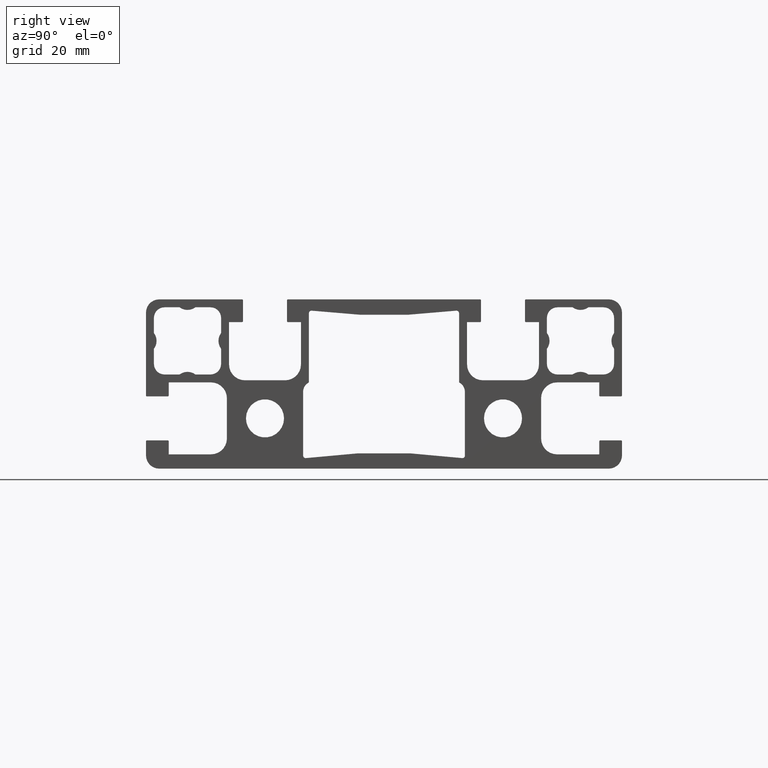
[diagram: clean part render]
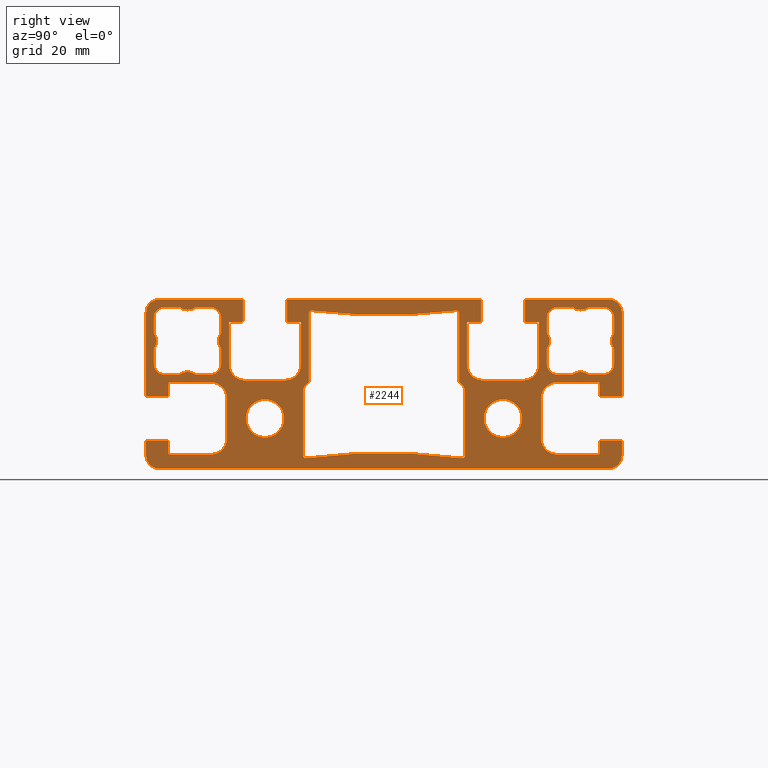
[diagram: same view with one face highlighted and labeled with its STEP entity id]
A machine part, right view. The second image highlights one B-rep face of the part: STEP entity #2244.
In plain terms, the highlighted planar face has unit normal (1, 0, 0).
Its self-contained STEP definition (entity closure, byte-faithful):
#20=FACE_BOUND('',#312,.T.);
#21=FACE_BOUND('',#313,.T.);
#22=FACE_BOUND('',#314,.T.);
#23=FACE_BOUND('',#315,.T.);
#24=FACE_BOUND('',#316,.T.);
#82=PLANE('',#2484);
#194=FACE_OUTER_BOUND('',#311,.T.);
#311=EDGE_LOOP('',(#1969,#1970,#1971,#1972,#1973,#1974,#1975,#1976,#1977,
#1978,#1979,#1980,#1981,#1982,#1983,#1984,#1985,#1986,#1987,#1988,#1989,
#1990,#1991,#1992,#1993,#1994,#1995,#1996,#1997,#1998,#1999,#2000,#2001,
#2002,#2003,#2004,#2005,#2006,#2007,#2008,#2009,#2010,#2011,#2012,#2013,
#2014,#2015,#2016,#2017,#2018,#2019,#2020,#2021,#2022,#2023,#2024,#2025,
#2026,#2027,#2028,#2029,#2030,#2031,#2032));
#312=EDGE_LOOP('',(#2033,#2034,#2035,#2036,#2037,#2038,#2039,#2040,#2041,
#2042,#2043,#2044));
#313=EDGE_LOOP('',(#2045,#2046,#2047,#2048,#2049,#2050,#2051,#2052,#2053,
#2054,#2055,#2056,#2057,#2058,#2059,#2060));
#314=EDGE_LOOP('',(#2061,#2062,#2063,#2064,#2065,#2066,#2067,#2068,#2069,
#2070,#2071,#2072,#2073,#2074,#2075,#2076));
#315=EDGE_LOOP('',(#2077));
#316=EDGE_LOOP('',(#2078));
#318=CIRCLE('',#2267,0.500000000000047);
#320=CIRCLE('',#2270,108.3);
#322=CIRCLE('',#2273,0.500000000000009);
#324=CIRCLE('',#2277,2.);
#326=CIRCLE('',#2281,0.499999999999996);
#328=CIRCLE('',#2284,108.3);
#330=CIRCLE('',#2287,0.499999999999994);
#332=CIRCLE('',#2291,2.);
#334=CIRCLE('',#2295,2.);
#336=CIRCLE('',#2299,2.5);
#338=CIRCLE('',#2303,2.00000000000001);
#340=CIRCLE('',#2307,2.5);
#342=CIRCLE('',#2311,2.00000000000001);
#344=CIRCLE('',#2315,2.5);
#346=CIRCLE('',#2319,2.);
#348=CIRCLE('',#2323,2.5);
#350=CIRCLE('',#2327,2.00000000000001);
#352=CIRCLE('',#2331,2.5);
#354=CIRCLE('',#2335,2.);
#356=CIRCLE('',#2339,2.5);
#358=CIRCLE('',#2343,2.00000000000001);
#360=CIRCLE('',#2347,2.5);
#362=CIRCLE('',#2351,2.00000000000001);
#364=CIRCLE('',#2355,2.5);
#366=CIRCLE('',#2359,3.6);
#368=CIRCLE('',#2362,3.6);
#397=CIRCLE('',#2393,0.199999999999996);
#398=CIRCLE('',#2396,0.199999999999996);
#399=CIRCLE('',#2399,2.5);
#400=CIRCLE('',#2402,0.199999999999996);
#401=CIRCLE('',#2405,0.2);
#402=CIRCLE('',#2409,3.);
#403=CIRCLE('',#2412,3.);
#404=CIRCLE('',#2416,0.199999999999998);
#405=CIRCLE('',#2419,0.200000000000016);
#406=CIRCLE('',#2422,0.199999999999998);
#407=CIRCLE('',#2425,0.199999999999998);
#408=CIRCLE('',#2429,3.);
#409=CIRCLE('',#2432,3.);
#410=CIRCLE('',#2436,0.2);
#411=CIRCLE('',#2439,0.199999999999991);
#412=CIRCLE('',#2442,2.5);
#413=CIRCLE('',#2445,0.199999999999996);
#414=CIRCLE('',#2448,0.199999999999996);
#415=CIRCLE('',#2452,3.00000000000001);
#416=CIRCLE('',#2455,2.99999999999999);
#417=CIRCLE('',#2459,0.199999999999996);
#418=CIRCLE('',#2462,0.199999999999996);
#419=CIRCLE('',#2465,2.5);
#420=CIRCLE('',#2468,2.5);
#421=CIRCLE('',#2471,0.2);
#422=CIRCLE('',#2474,0.199999999999996);
#423=CIRCLE('',#2478,3.);
#424=CIRCLE('',#2481,3.);
#431=LINE('',#3176,#653);
#435=LINE('',#3188,#657);
#441=LINE('',#3212,#663);
#444=LINE('',#3221,#666);
#449=LINE('',#3236,#671);
#453=LINE('',#3248,#675);
#457=LINE('',#3260,#679);
#461=LINE('',#3272,#683);
#465=LINE('',#3284,#687);
#469=LINE('',#3296,#691);
#473=LINE('',#3308,#695);
#476=LINE('',#3317,#698);
#481=LINE('',#3332,#703);
#485=LINE('',#3344,#707);
#489=LINE('',#3356,#711);
#493=LINE('',#3368,#715);
#497=LINE('',#3380,#719);
#501=LINE('',#3392,#723);
#505=LINE('',#3404,#727);
#508=LINE('',#3413,#730);
#549=LINE('',#3563,#771);
#552=LINE('',#3571,#774);
#555=LINE('',#3579,#777);
#558=LINE('',#3587,#780);
#561=LINE('',#3595,#783);
#563=LINE('',#3599,#785);
#566=LINE('',#3607,#788);
#569=LINE('',#3615,#791);
#571=LINE('',#3619,#793);
#574=LINE('',#3627,#796);
#577=LINE('',#3635,#799);
#580=LINE('',#3643,#802);
#583=LINE('',#3651,#805);
#585=LINE('',#3655,#807);
#588=LINE('',#3663,#810);
#591=LINE('',#3671,#813);
#593=LINE('',#3675,#815);
#596=LINE('',#3683,#818);
#599=LINE('',#3691,#821);
#602=LINE('',#3699,#824);
#605=LINE('',#3707,#827);
#608=LINE('',#3715,#830);
#610=LINE('',#3719,#832);
#613=LINE('',#3727,#835);
#616=LINE('',#3735,#838);
#618=LINE('',#3739,#840);
#621=LINE('',#3747,#843);
#624=LINE('',#3755,#846);
#627=LINE('',#3763,#849);
#630=LINE('',#3771,#852);
#633=LINE('',#3779,#855);
#636=LINE('',#3787,#858);
#638=LINE('',#3791,#860);
#641=LINE('',#3799,#863);
#644=LINE('',#3807,#866);
#646=LINE('',#3810,#868);
#653=VECTOR('',#2513,10.);
#657=VECTOR('',#2525,10.);
#663=VECTOR('',#2551,10.);
#666=VECTOR('',#2562,10.);
#671=VECTOR('',#2575,10.);
#675=VECTOR('',#2587,10.);
#679=VECTOR('',#2599,10.);
#683=VECTOR('',#2611,10.);
#687=VECTOR('',#2623,10.);
#691=VECTOR('',#2635,10.);
#695=VECTOR('',#2647,10.);
#698=VECTOR('',#2658,10.);
#703=VECTOR('',#2671,10.);
#707=VECTOR('',#2683,10.);
#711=VECTOR('',#2695,10.);
#715=VECTOR('',#2707,10.);
#719=VECTOR('',#2719,10.);
#723=VECTOR('',#2731,10.);
#727=VECTOR('',#2743,10.);
#730=VECTOR('',#2754,10.);
#771=VECTOR('',#2871,10.);
#774=VECTOR('',#2880,10.);
#777=VECTOR('',#2889,10.);
#780=VECTOR('',#2898,10.);
#783=VECTOR('',#2907,10.);
#785=VECTOR('',#2911,10.);
#788=VECTOR('',#2920,10.);
#791=VECTOR('',#2929,10.);
#793=VECTOR('',#2933,10.);
#796=VECTOR('',#2942,10.);
#799=VECTOR('',#2951,10.);
#802=VECTOR('',#2960,10.);
#805=VECTOR('',#2969,10.);
#807=VECTOR('',#2973,10.);
#810=VECTOR('',#2982,10.);
#813=VECTOR('',#2991,10.);
#815=VECTOR('',#2995,10.);
#818=VECTOR('',#3004,10.);
#821=VECTOR('',#3013,10.);
#824=VECTOR('',#3022,10.);
#827=VECTOR('',#3031,10.);
#830=VECTOR('',#3040,10.);
#832=VECTOR('',#3044,10.);
#835=VECTOR('',#3053,10.);
#838=VECTOR('',#3062,10.);
#840=VECTOR('',#3066,10.);
#843=VECTOR('',#3075,10.);
#846=VECTOR('',#3084,10.);
#849=VECTOR('',#3093,10.);
#852=VECTOR('',#3102,10.);
#855=VECTOR('',#3111,10.);
#858=VECTOR('',#3120,10.);
#860=VECTOR('',#3124,10.);
#863=VECTOR('',#3133,10.);
#866=VECTOR('',#3142,10.);
#868=VECTOR('',#3146,10.);
#869=VERTEX_POINT('',#3151);
#872=VERTEX_POINT('',#3156);
#874=VERTEX_POINT('',#3162);
#876=VERTEX_POINT('',#3168);
#878=VERTEX_POINT('',#3174);
#880=VERTEX_POINT('',#3180);
#882=VERTEX_POINT('',#3186);
#884=VERTEX_POINT('',#3192);
#886=VERTEX_POINT('',#3198);
#888=VERTEX_POINT('',#3204);
#890=VERTEX_POINT('',#3210);
#892=VERTEX_POINT('',#3216);
#893=VERTEX_POINT('',#3223);
#896=VERTEX_POINT('',#3228);
#898=VERTEX_POINT('',#3234);
#900=VERTEX_POINT('',#3240);
#902=VERTEX_POINT('',#3246);
#904=VERTEX_POINT('',#3252);
#906=VERTEX_POINT('',#3258);
#908=VERTEX_POINT('',#3264);
#910=VERTEX_POINT('',#3270);
#912=VERTEX_POINT('',#3276);
#914=VERTEX_POINT('',#3282);
#916=VERTEX_POINT('',#3288);
#918=VERTEX_POINT('',#3294);
#920=VERTEX_POINT('',#3300);
#922=VERTEX_POINT('',#3306);
#924=VERTEX_POINT('',#3312);
#925=VERTEX_POINT('',#3319);
#928=VERTEX_POINT('',#3324);
#930=VERTEX_POINT('',#3330);
#932=VERTEX_POINT('',#3336);
#934=VERTEX_POINT('',#3342);
#936=VERTEX_POINT('',#3348);
#938=VERTEX_POINT('',#3354);
#940=VERTEX_POINT('',#3360);
#942=VERTEX_POINT('',#3366);
#944=VERTEX_POINT('',#3372);
#946=VERTEX_POINT('',#3378);
#948=VERTEX_POINT('',#3384);
#950=VERTEX_POINT('',#3390);
#952=VERTEX_POINT('',#3396);
#954=VERTEX_POINT('',#3402);
#956=VERTEX_POINT('',#3408);
#958=VERTEX_POINT('',#3417);
#960=VERTEX_POINT('',#3423);
#1025=VERTEX_POINT('',#3556);
#1026=VERTEX_POINT('',#3558);
#1027=VERTEX_POINT('',#3562);
#1028=VERTEX_POINT('',#3566);
#1029=VERTEX_POINT('',#3570);
#1030=VERTEX_POINT('',#3574);
#1031=VERTEX_POINT('',#3578);
#1032=VERTEX_POINT('',#3582);
#1033=VERTEX_POINT('',#3586);
#1034=VERTEX_POINT('',#3590);
#1035=VERTEX_POINT('',#3594);
#1036=VERTEX_POINT('',#3598);
#1037=VERTEX_POINT('',#3602);
#1038=VERTEX_POINT('',#3606);
#1039=VERTEX_POINT('',#3610);
#1040=VERTEX_POINT('',#3614);
#1041=VERTEX_POINT('',#3618);
#1042=VERTEX_POINT('',#3622);
#1043=VERTEX_POINT('',#3626);
#1044=VERTEX_POINT('',#3630);
#1045=VERTEX_POINT('',#3634);
#1046=VERTEX_POINT('',#3638);
#1047=VERTEX_POINT('',#3642);
#1048=VERTEX_POINT('',#3646);
#1049=VERTEX_POINT('',#3650);
#1050=VERTEX_POINT('',#3654);
#1051=VERTEX_POINT('',#3658);
#1052=VERTEX_POINT('',#3662);
#1053=VERTEX_POINT('',#3666);
#1054=VERTEX_POINT('',#3670);
#1055=VERTEX_POINT('',#3674);
#1056=VERTEX_POINT('',#3678);
#1057=VERTEX_POINT('',#3682);
#1058=VERTEX_POINT('',#3686);
#1059=VERTEX_POINT('',#3690);
#1060=VERTEX_POINT('',#3694);
#1061=VERTEX_POINT('',#3698);
#1062=VERTEX_POINT('',#3702);
#1063=VERTEX_POINT('',#3706);
#1064=VERTEX_POINT('',#3710);
#1065=VERTEX_POINT('',#3714);
#1066=VERTEX_POINT('',#3718);
#1067=VERTEX_POINT('',#3722);
#1068=VERTEX_POINT('',#3726);
#1069=VERTEX_POINT('',#3730);
#1070=VERTEX_POINT('',#3734);
#1071=VERTEX_POINT('',#3738);
#1072=VERTEX_POINT('',#3742);
#1073=VERTEX_POINT('',#3746);
#1074=VERTEX_POINT('',#3750);
#1075=VERTEX_POINT('',#3754);
#1076=VERTEX_POINT('',#3758);
#1077=VERTEX_POINT('',#3762);
#1078=VERTEX_POINT('',#3766);
#1079=VERTEX_POINT('',#3770);
#1080=VERTEX_POINT('',#3774);
#1081=VERTEX_POINT('',#3778);
#1082=VERTEX_POINT('',#3782);
#1083=VERTEX_POINT('',#3786);
#1084=VERTEX_POINT('',#3790);
#1085=VERTEX_POINT('',#3794);
#1086=VERTEX_POINT('',#3798);
#1087=VERTEX_POINT('',#3802);
#1088=VERTEX_POINT('',#3806);
#1092=EDGE_CURVE('',#869,#872,#318,.T.);
#1095=EDGE_CURVE('',#872,#874,#320,.T.);
#1098=EDGE_CURVE('',#874,#876,#322,.T.);
#1101=EDGE_CURVE('',#876,#878,#431,.T.);
#1104=EDGE_CURVE('',#878,#880,#324,.T.);
#1107=EDGE_CURVE('',#880,#882,#435,.T.);
#1110=EDGE_CURVE('',#882,#884,#326,.T.);
#1113=EDGE_CURVE('',#884,#886,#328,.T.);
#1116=EDGE_CURVE('',#886,#888,#330,.T.);
#1119=EDGE_CURVE('',#888,#890,#441,.T.);
#1122=EDGE_CURVE('',#890,#892,#332,.T.);
#1124=EDGE_CURVE('',#892,#869,#444,.T.);
#1128=EDGE_CURVE('',#893,#896,#334,.T.);
#1131=EDGE_CURVE('',#896,#898,#449,.T.);
#1134=EDGE_CURVE('',#898,#900,#336,.T.);
#1137=EDGE_CURVE('',#900,#902,#453,.T.);
#1140=EDGE_CURVE('',#902,#904,#338,.T.);
#1143=EDGE_CURVE('',#904,#906,#457,.T.);
#1146=EDGE_CURVE('',#906,#908,#340,.T.);
#1149=EDGE_CURVE('',#908,#910,#461,.T.);
#1152=EDGE_CURVE('',#910,#912,#342,.T.);
#1155=EDGE_CURVE('',#912,#914,#465,.T.);
#1158=EDGE_CURVE('',#914,#916,#344,.T.);
#1161=EDGE_CURVE('',#916,#918,#469,.T.);
#1164=EDGE_CURVE('',#918,#920,#346,.T.);
#1167=EDGE_CURVE('',#920,#922,#473,.T.);
#1170=EDGE_CURVE('',#922,#924,#348,.T.);
#1172=EDGE_CURVE('',#924,#893,#476,.T.);
#1176=EDGE_CURVE('',#925,#928,#350,.T.);
#1179=EDGE_CURVE('',#928,#930,#481,.T.);
#1182=EDGE_CURVE('',#930,#932,#352,.T.);
#1185=EDGE_CURVE('',#932,#934,#485,.T.);
#1188=EDGE_CURVE('',#934,#936,#354,.T.);
#1191=EDGE_CURVE('',#936,#938,#489,.T.);
#1194=EDGE_CURVE('',#938,#940,#356,.T.);
#1197=EDGE_CURVE('',#940,#942,#493,.T.);
#1200=EDGE_CURVE('',#942,#944,#358,.T.);
#1203=EDGE_CURVE('',#944,#946,#497,.T.);
#1206=EDGE_CURVE('',#946,#948,#360,.T.);
#1209=EDGE_CURVE('',#948,#950,#501,.T.);
#1212=EDGE_CURVE('',#950,#952,#362,.T.);
#1215=EDGE_CURVE('',#952,#954,#505,.T.);
#1218=EDGE_CURVE('',#954,#956,#364,.T.);
#1220=EDGE_CURVE('',#956,#925,#508,.T.);
#1223=EDGE_CURVE('',#958,#958,#366,.T.);
#1226=EDGE_CURVE('',#960,#960,#368,.T.);
#1292=EDGE_CURVE('',#1026,#1025,#397,.T.);
#1294=EDGE_CURVE('',#1027,#1026,#549,.T.);
#1296=EDGE_CURVE('',#1028,#1027,#398,.T.);
#1298=EDGE_CURVE('',#1029,#1028,#552,.T.);
#1300=EDGE_CURVE('',#1030,#1029,#399,.T.);
#1302=EDGE_CURVE('',#1031,#1030,#555,.T.);
#1304=EDGE_CURVE('',#1032,#1031,#400,.T.);
#1306=EDGE_CURVE('',#1033,#1032,#558,.T.);
#1308=EDGE_CURVE('',#1034,#1033,#401,.T.);
#1310=EDGE_CURVE('',#1035,#1034,#561,.T.);
#1312=EDGE_CURVE('',#1036,#1035,#563,.T.);
#1314=EDGE_CURVE('',#1037,#1036,#402,.T.);
#1316=EDGE_CURVE('',#1038,#1037,#566,.T.);
#1318=EDGE_CURVE('',#1039,#1038,#403,.T.);
#1320=EDGE_CURVE('',#1040,#1039,#569,.T.);
#1322=EDGE_CURVE('',#1041,#1040,#571,.T.);
#1324=EDGE_CURVE('',#1042,#1041,#404,.T.);
#1326=EDGE_CURVE('',#1043,#1042,#574,.T.);
#1328=EDGE_CURVE('',#1044,#1043,#405,.T.);
#1330=EDGE_CURVE('',#1045,#1044,#577,.T.);
#1332=EDGE_CURVE('',#1046,#1045,#406,.T.);
#1334=EDGE_CURVE('',#1047,#1046,#580,.T.);
#1336=EDGE_CURVE('',#1048,#1047,#407,.T.);
#1338=EDGE_CURVE('',#1049,#1048,#583,.T.);
#1340=EDGE_CURVE('',#1050,#1049,#585,.T.);
#1342=EDGE_CURVE('',#1051,#1050,#408,.T.);
#1344=EDGE_CURVE('',#1052,#1051,#588,.T.);
#1346=EDGE_CURVE('',#1053,#1052,#409,.T.);
#1348=EDGE_CURVE('',#1054,#1053,#591,.T.);
#1350=EDGE_CURVE('',#1055,#1054,#593,.T.);
#1352=EDGE_CURVE('',#1056,#1055,#410,.T.);
#1354=EDGE_CURVE('',#1057,#1056,#596,.T.);
#1356=EDGE_CURVE('',#1058,#1057,#411,.T.);
#1358=EDGE_CURVE('',#1059,#1058,#599,.T.);
#1360=EDGE_CURVE('',#1060,#1059,#412,.T.);
#1362=EDGE_CURVE('',#1061,#1060,#602,.T.);
#1364=EDGE_CURVE('',#1062,#1061,#413,.T.);
#1366=EDGE_CURVE('',#1063,#1062,#605,.T.);
#1368=EDGE_CURVE('',#1064,#1063,#414,.T.);
#1370=EDGE_CURVE('',#1065,#1064,#608,.T.);
#1372=EDGE_CURVE('',#1066,#1065,#610,.T.);
#1374=EDGE_CURVE('',#1067,#1066,#415,.T.);
#1376=EDGE_CURVE('',#1068,#1067,#613,.T.);
#1378=EDGE_CURVE('',#1069,#1068,#416,.T.);
#1380=EDGE_CURVE('',#1070,#1069,#616,.T.);
#1382=EDGE_CURVE('',#1071,#1070,#618,.T.);
#1384=EDGE_CURVE('',#1072,#1071,#417,.T.);
#1386=EDGE_CURVE('',#1073,#1072,#621,.T.);
#1388=EDGE_CURVE('',#1074,#1073,#418,.T.);
#1390=EDGE_CURVE('',#1075,#1074,#624,.T.);
#1392=EDGE_CURVE('',#1076,#1075,#419,.T.);
#1394=EDGE_CURVE('',#1077,#1076,#627,.T.);
#1396=EDGE_CURVE('',#1078,#1077,#420,.T.);
#1398=EDGE_CURVE('',#1079,#1078,#630,.T.);
#1400=EDGE_CURVE('',#1080,#1079,#421,.T.);
#1402=EDGE_CURVE('',#1081,#1080,#633,.T.);
#1404=EDGE_CURVE('',#1082,#1081,#422,.T.);
#1406=EDGE_CURVE('',#1083,#1082,#636,.T.);
#1408=EDGE_CURVE('',#1084,#1083,#638,.T.);
#1410=EDGE_CURVE('',#1085,#1084,#423,.T.);
#1412=EDGE_CURVE('',#1086,#1085,#641,.T.);
#1414=EDGE_CURVE('',#1087,#1086,#424,.T.);
#1416=EDGE_CURVE('',#1088,#1087,#644,.T.);
#1418=EDGE_CURVE('',#1025,#1088,#646,.T.);
#1969=ORIENTED_EDGE('',*,*,#1418,.T.);
#1970=ORIENTED_EDGE('',*,*,#1416,.T.);
#1971=ORIENTED_EDGE('',*,*,#1414,.T.);
#1972=ORIENTED_EDGE('',*,*,#1412,.T.);
#1973=ORIENTED_EDGE('',*,*,#1410,.T.);
#1974=ORIENTED_EDGE('',*,*,#1408,.T.);
#1975=ORIENTED_EDGE('',*,*,#1406,.T.);
#1976=ORIENTED_EDGE('',*,*,#1404,.T.);
#1977=ORIENTED_EDGE('',*,*,#1402,.T.);
#1978=ORIENTED_EDGE('',*,*,#1400,.T.);
#1979=ORIENTED_EDGE('',*,*,#1398,.T.);
#1980=ORIENTED_EDGE('',*,*,#1396,.T.);
#1981=ORIENTED_EDGE('',*,*,#1394,.T.);
#1982=ORIENTED_EDGE('',*,*,#1392,.T.);
#1983=ORIENTED_EDGE('',*,*,#1390,.T.);
#1984=ORIENTED_EDGE('',*,*,#1388,.T.);
#1985=ORIENTED_EDGE('',*,*,#1386,.T.);
#1986=ORIENTED_EDGE('',*,*,#1384,.T.);
#1987=ORIENTED_EDGE('',*,*,#1382,.T.);
#1988=ORIENTED_EDGE('',*,*,#1380,.T.);
#1989=ORIENTED_EDGE('',*,*,#1378,.T.);
#1990=ORIENTED_EDGE('',*,*,#1376,.T.);
#1991=ORIENTED_EDGE('',*,*,#1374,.T.);
#1992=ORIENTED_EDGE('',*,*,#1372,.T.);
#1993=ORIENTED_EDGE('',*,*,#1370,.T.);
#1994=ORIENTED_EDGE('',*,*,#1368,.T.);
#1995=ORIENTED_EDGE('',*,*,#1366,.T.);
#1996=ORIENTED_EDGE('',*,*,#1364,.T.);
#1997=ORIENTED_EDGE('',*,*,#1362,.T.);
#1998=ORIENTED_EDGE('',*,*,#1360,.T.);
#1999=ORIENTED_EDGE('',*,*,#1358,.T.);
#2000=ORIENTED_EDGE('',*,*,#1356,.T.);
#2001=ORIENTED_EDGE('',*,*,#1354,.T.);
#2002=ORIENTED_EDGE('',*,*,#1352,.T.);
#2003=ORIENTED_EDGE('',*,*,#1350,.T.);
#2004=ORIENTED_EDGE('',*,*,#1348,.T.);
#2005=ORIENTED_EDGE('',*,*,#1346,.T.);
#2006=ORIENTED_EDGE('',*,*,#1344,.T.);
#2007=ORIENTED_EDGE('',*,*,#1342,.T.);
#2008=ORIENTED_EDGE('',*,*,#1340,.T.);
#2009=ORIENTED_EDGE('',*,*,#1338,.T.);
#2010=ORIENTED_EDGE('',*,*,#1336,.T.);
#2011=ORIENTED_EDGE('',*,*,#1334,.T.);
#2012=ORIENTED_EDGE('',*,*,#1332,.T.);
#2013=ORIENTED_EDGE('',*,*,#1330,.T.);
#2014=ORIENTED_EDGE('',*,*,#1328,.T.);
#2015=ORIENTED_EDGE('',*,*,#1326,.T.);
#2016=ORIENTED_EDGE('',*,*,#1324,.T.);
#2017=ORIENTED_EDGE('',*,*,#1322,.T.);
#2018=ORIENTED_EDGE('',*,*,#1320,.T.);
#2019=ORIENTED_EDGE('',*,*,#1318,.T.);
#2020=ORIENTED_EDGE('',*,*,#1316,.T.);
#2021=ORIENTED_EDGE('',*,*,#1314,.T.);
#2022=ORIENTED_EDGE('',*,*,#1312,.T.);
#2023=ORIENTED_EDGE('',*,*,#1310,.T.);
#2024=ORIENTED_EDGE('',*,*,#1308,.T.);
#2025=ORIENTED_EDGE('',*,*,#1306,.T.);
#2026=ORIENTED_EDGE('',*,*,#1304,.T.);
#2027=ORIENTED_EDGE('',*,*,#1302,.T.);
#2028=ORIENTED_EDGE('',*,*,#1300,.T.);
#2029=ORIENTED_EDGE('',*,*,#1298,.T.);
#2030=ORIENTED_EDGE('',*,*,#1296,.T.);
#2031=ORIENTED_EDGE('',*,*,#1294,.T.);
#2032=ORIENTED_EDGE('',*,*,#1292,.T.);
#2033=ORIENTED_EDGE('',*,*,#1092,.T.);
#2034=ORIENTED_EDGE('',*,*,#1095,.T.);
#2035=ORIENTED_EDGE('',*,*,#1098,.T.);
#2036=ORIENTED_EDGE('',*,*,#1101,.T.);
#2037=ORIENTED_EDGE('',*,*,#1104,.T.);
#2038=ORIENTED_EDGE('',*,*,#1107,.T.);
#2039=ORIENTED_EDGE('',*,*,#1110,.T.);
#2040=ORIENTED_EDGE('',*,*,#1113,.T.);
#2041=ORIENTED_EDGE('',*,*,#1116,.T.);
#2042=ORIENTED_EDGE('',*,*,#1119,.T.);
#2043=ORIENTED_EDGE('',*,*,#1122,.T.);
#2044=ORIENTED_EDGE('',*,*,#1124,.T.);
#2045=ORIENTED_EDGE('',*,*,#1128,.T.);
#2046=ORIENTED_EDGE('',*,*,#1131,.T.);
#2047=ORIENTED_EDGE('',*,*,#1134,.T.);
#2048=ORIENTED_EDGE('',*,*,#1137,.T.);
#2049=ORIENTED_EDGE('',*,*,#1140,.T.);
#2050=ORIENTED_EDGE('',*,*,#1143,.T.);
#2051=ORIENTED_EDGE('',*,*,#1146,.T.);
#2052=ORIENTED_EDGE('',*,*,#1149,.T.);
#2053=ORIENTED_EDGE('',*,*,#1152,.T.);
#2054=ORIENTED_EDGE('',*,*,#1155,.T.);
#2055=ORIENTED_EDGE('',*,*,#1158,.T.);
#2056=ORIENTED_EDGE('',*,*,#1161,.T.);
#2057=ORIENTED_EDGE('',*,*,#1164,.T.);
#2058=ORIENTED_EDGE('',*,*,#1167,.T.);
#2059=ORIENTED_EDGE('',*,*,#1170,.T.);
#2060=ORIENTED_EDGE('',*,*,#1172,.T.);
#2061=ORIENTED_EDGE('',*,*,#1176,.T.);
#2062=ORIENTED_EDGE('',*,*,#1179,.T.);
#2063=ORIENTED_EDGE('',*,*,#1182,.T.);
#2064=ORIENTED_EDGE('',*,*,#1185,.T.);
#2065=ORIENTED_EDGE('',*,*,#1188,.T.);
#2066=ORIENTED_EDGE('',*,*,#1191,.T.);
#2067=ORIENTED_EDGE('',*,*,#1194,.T.);
#2068=ORIENTED_EDGE('',*,*,#1197,.T.);
#2069=ORIENTED_EDGE('',*,*,#1200,.T.);
#2070=ORIENTED_EDGE('',*,*,#1203,.T.);
#2071=ORIENTED_EDGE('',*,*,#1206,.T.);
#2072=ORIENTED_EDGE('',*,*,#1209,.T.);
#2073=ORIENTED_EDGE('',*,*,#1212,.T.);
#2074=ORIENTED_EDGE('',*,*,#1215,.T.);
#2075=ORIENTED_EDGE('',*,*,#1218,.T.);
#2076=ORIENTED_EDGE('',*,*,#1220,.T.);
#2077=ORIENTED_EDGE('',*,*,#1223,.T.);
#2078=ORIENTED_EDGE('',*,*,#1226,.T.);
#2244=ADVANCED_FACE('',(#194,#20,#21,#22,#23,#24),#82,.T.);
#2267=AXIS2_PLACEMENT_3D('',#3158,#2493,#2494);
#2270=AXIS2_PLACEMENT_3D('',#3164,#2500,#2501);
#2273=AXIS2_PLACEMENT_3D('',#3170,#2507,#2508);
#2277=AXIS2_PLACEMENT_3D('',#3182,#2519,#2520);
#2281=AXIS2_PLACEMENT_3D('',#3194,#2531,#2532);
#2284=AXIS2_PLACEMENT_3D('',#3200,#2538,#2539);
#2287=AXIS2_PLACEMENT_3D('',#3206,#2545,#2546);
#2291=AXIS2_PLACEMENT_3D('',#3218,#2557,#2558);
#2295=AXIS2_PLACEMENT_3D('',#3230,#2569,#2570);
#2299=AXIS2_PLACEMENT_3D('',#3242,#2581,#2582);
#2303=AXIS2_PLACEMENT_3D('',#3254,#2593,#2594);
#2307=AXIS2_PLACEMENT_3D('',#3266,#2605,#2606);
#2311=AXIS2_PLACEMENT_3D('',#3278,#2617,#2618);
#2315=AXIS2_PLACEMENT_3D('',#3290,#2629,#2630);
#2319=AXIS2_PLACEMENT_3D('',#3302,#2641,#2642);
#2323=AXIS2_PLACEMENT_3D('',#3314,#2653,#2654);
#2327=AXIS2_PLACEMENT_3D('',#3326,#2665,#2666);
#2331=AXIS2_PLACEMENT_3D('',#3338,#2677,#2678);
#2335=AXIS2_PLACEMENT_3D('',#3350,#2689,#2690);
#2339=AXIS2_PLACEMENT_3D('',#3362,#2701,#2702);
#2343=AXIS2_PLACEMENT_3D('',#3374,#2713,#2714);
#2347=AXIS2_PLACEMENT_3D('',#3386,#2725,#2726);
#2351=AXIS2_PLACEMENT_3D('',#3398,#2737,#2738);
#2355=AXIS2_PLACEMENT_3D('',#3410,#2749,#2750);
#2359=AXIS2_PLACEMENT_3D('',#3419,#2760,#2761);
#2362=AXIS2_PLACEMENT_3D('',#3425,#2767,#2768);
#2393=AXIS2_PLACEMENT_3D('',#3559,#2866,#2867);
#2396=AXIS2_PLACEMENT_3D('',#3567,#2875,#2876);
#2399=AXIS2_PLACEMENT_3D('',#3575,#2884,#2885);
#2402=AXIS2_PLACEMENT_3D('',#3583,#2893,#2894);
#2405=AXIS2_PLACEMENT_3D('',#3591,#2902,#2903);
#2409=AXIS2_PLACEMENT_3D('',#3603,#2915,#2916);
#2412=AXIS2_PLACEMENT_3D('',#3611,#2924,#2925);
#2416=AXIS2_PLACEMENT_3D('',#3623,#2937,#2938);
#2419=AXIS2_PLACEMENT_3D('',#3631,#2946,#2947);
#2422=AXIS2_PLACEMENT_3D('',#3639,#2955,#2956);
#2425=AXIS2_PLACEMENT_3D('',#3647,#2964,#2965);
#2429=AXIS2_PLACEMENT_3D('',#3659,#2977,#2978);
#2432=AXIS2_PLACEMENT_3D('',#3667,#2986,#2987);
#2436=AXIS2_PLACEMENT_3D('',#3679,#2999,#3000);
#2439=AXIS2_PLACEMENT_3D('',#3687,#3008,#3009);
#2442=AXIS2_PLACEMENT_3D('',#3695,#3017,#3018);
#2445=AXIS2_PLACEMENT_3D('',#3703,#3026,#3027);
#2448=AXIS2_PLACEMENT_3D('',#3711,#3035,#3036);
#2452=AXIS2_PLACEMENT_3D('',#3723,#3048,#3049);
#2455=AXIS2_PLACEMENT_3D('',#3731,#3057,#3058);
#2459=AXIS2_PLACEMENT_3D('',#3743,#3070,#3071);
#2462=AXIS2_PLACEMENT_3D('',#3751,#3079,#3080);
#2465=AXIS2_PLACEMENT_3D('',#3759,#3088,#3089);
#2468=AXIS2_PLACEMENT_3D('',#3767,#3097,#3098);
#2471=AXIS2_PLACEMENT_3D('',#3775,#3106,#3107);
#2474=AXIS2_PLACEMENT_3D('',#3783,#3115,#3116);
#2478=AXIS2_PLACEMENT_3D('',#3795,#3128,#3129);
#2481=AXIS2_PLACEMENT_3D('',#3803,#3137,#3138);
#2484=AXIS2_PLACEMENT_3D('',#3811,#3147,#3148);
#2493=DIRECTION('center_axis',(-1.,0.,0.));
#2494=DIRECTION('ref_axis',(0.,-0.125919117647058,-0.99204051117431));
#2500=DIRECTION('center_axis',(1.,0.,0.));
#2501=DIRECTION('ref_axis',(0.,-0.125919117647059,-0.99204051117431));
#2507=DIRECTION('center_axis',(-1.,0.,0.));
#2508=DIRECTION('ref_axis',(0.,-1.,0.));
#2513=DIRECTION('',(0.,1.69940865106383E-16,-1.));
#2519=DIRECTION('center_axis',(-1.,0.,0.));
#2520=DIRECTION('ref_axis',(0.,-1.,0.));
#2525=DIRECTION('',(0.,0.,-1.));
#2531=DIRECTION('center_axis',(-1.,0.,0.));
#2532=DIRECTION('ref_axis',(0.,0.136029411764704,0.99070479918841));
#2538=DIRECTION('center_axis',(1.,0.,0.));
#2539=DIRECTION('ref_axis',(0.,0.136029411764706,0.99070479918841));
#2545=DIRECTION('center_axis',(-1.,0.,0.));
#2546=DIRECTION('ref_axis',(0.,1.,0.));
#2551=DIRECTION('',(0.,3.69296948742028E-16,1.));
#2557=DIRECTION('center_axis',(-1.,0.,0.));
#2558=DIRECTION('ref_axis',(0.,0.449999999999998,-0.893028554974589));
#2562=DIRECTION('',(0.,0.,1.));
#2569=DIRECTION('center_axis',(-1.,0.,0.));
#2570=DIRECTION('ref_axis',(0.,0.,1.));
#2575=DIRECTION('',(0.,1.,2.55223683821875E-16));
#2581=DIRECTION('center_axis',(1.,0.,0.));
#2582=DIRECTION('ref_axis',(0.,0.600000000000001,0.799999999999999));
#2587=DIRECTION('',(0.,1.,2.55223683821875E-16));
#2593=DIRECTION('center_axis',(-1.,0.,0.));
#2594=DIRECTION('ref_axis',(0.,1.,0.));
#2599=DIRECTION('',(0.,0.,-1.));
#2605=DIRECTION('center_axis',(1.,0.,0.));
#2606=DIRECTION('ref_axis',(0.,0.800000000000004,-0.599999999999994));
#2611=DIRECTION('',(0.,0.,-1.));
#2617=DIRECTION('center_axis',(-1.,0.,0.));
#2618=DIRECTION('ref_axis',(0.,4.44089209850062E-15,-1.));
#2623=DIRECTION('',(0.,-1.,-1.91417762866406E-16));
#2629=DIRECTION('center_axis',(1.,0.,0.));
#2630=DIRECTION('ref_axis',(0.,-0.599999999999994,-0.800000000000004));
#2635=DIRECTION('',(0.,-1.,-1.91417762866406E-16));
#2641=DIRECTION('center_axis',(-1.,0.,0.));
#2642=DIRECTION('ref_axis',(0.,-1.,0.));
#2647=DIRECTION('',(0.,-5.10447367643751E-16,1.));
#2653=DIRECTION('center_axis',(1.,0.,0.));
#2654=DIRECTION('ref_axis',(0.,-0.8,0.6));
#2658=DIRECTION('',(0.,-5.10447367643751E-16,1.));
#2665=DIRECTION('center_axis',(-1.,0.,0.));
#2666=DIRECTION('ref_axis',(0.,0.,1.));
#2671=DIRECTION('',(0.,1.,2.55223683821875E-16));
#2677=DIRECTION('center_axis',(1.,0.,0.));
#2678=DIRECTION('ref_axis',(0.,0.600000000000001,0.799999999999999));
#2683=DIRECTION('',(0.,1.,2.55223683821875E-16));
#2689=DIRECTION('center_axis',(-1.,0.,0.));
#2690=DIRECTION('ref_axis',(0.,1.,0.));
#2695=DIRECTION('',(0.,0.,-1.));
#2701=DIRECTION('center_axis',(1.,0.,0.));
#2702=DIRECTION('ref_axis',(0.,0.800000000000001,-0.599999999999999));
#2707=DIRECTION('',(0.,0.,-1.));
#2713=DIRECTION('center_axis',(-1.,0.,0.));
#2714=DIRECTION('ref_axis',(0.,0.,-1.));
#2719=DIRECTION('',(0.,-1.,-1.59514802388672E-16));
#2725=DIRECTION('center_axis',(1.,0.,0.));
#2726=DIRECTION('ref_axis',(0.,-0.6,-0.8));
#2731=DIRECTION('',(0.,-1.,-1.59514802388672E-16));
#2737=DIRECTION('center_axis',(-1.,0.,0.));
#2738=DIRECTION('ref_axis',(0.,-1.,0.));
#2743=DIRECTION('',(0.,0.,1.));
#2749=DIRECTION('center_axis',(1.,0.,0.));
#2750=DIRECTION('ref_axis',(0.,-0.800000000000008,0.599999999999989));
#2754=DIRECTION('',(0.,0.,1.));
#2760=DIRECTION('center_axis',(-1.,0.,0.));
#2761=DIRECTION('ref_axis',(0.,-1.,0.));
#2767=DIRECTION('center_axis',(-1.,0.,0.));
#2768=DIRECTION('ref_axis',(0.,-1.,0.));
#2866=DIRECTION('center_axis',(1.,0.,0.));
#2867=DIRECTION('ref_axis',(0.,0.,1.));
#2871=DIRECTION('',(0.,1.,0.));
#2875=DIRECTION('center_axis',(1.,0.,0.));
#2876=DIRECTION('ref_axis',(0.,1.,-5.5511151231259E-15));
#2880=DIRECTION('',(0.,0.,-1.));
#2884=DIRECTION('center_axis',(1.,0.,0.));
#2885=DIRECTION('ref_axis',(0.,0.,-1.));
#2889=DIRECTION('',(0.,-1.,1.41881536693311E-16));
#2893=DIRECTION('center_axis',(1.,0.,0.));
#2894=DIRECTION('ref_axis',(0.,-1.,1.11022302462518E-14));
#2898=DIRECTION('',(0.,0.,1.));
#2902=DIRECTION('center_axis',(1.,0.,0.));
#2903=DIRECTION('ref_axis',(0.,0.,1.));
#2907=DIRECTION('',(0.,1.,0.));
#2911=DIRECTION('',(0.,5.55111512312578E-16,1.));
#2915=DIRECTION('center_axis',(-1.,0.,0.));
#2916=DIRECTION('ref_axis',(0.,-1.,0.));
#2920=DIRECTION('',(0.,-1.,0.));
#2924=DIRECTION('center_axis',(-1.,0.,0.));
#2925=DIRECTION('ref_axis',(0.,-7.40148683083438E-16,-1.));
#2929=DIRECTION('',(0.,0.,-1.));
#2933=DIRECTION('',(0.,1.,0.));
#2937=DIRECTION('center_axis',(1.,0.,0.));
#2938=DIRECTION('ref_axis',(0.,1.,0.));
#2942=DIRECTION('',(0.,5.69345140833414E-16,-1.));
#2946=DIRECTION('center_axis',(1.,0.,0.));
#2947=DIRECTION('ref_axis',(0.,2.22044604925014E-14,-1.));
#2951=DIRECTION('',(0.,-1.,6.11693126515238E-17));
#2955=DIRECTION('center_axis',(1.,0.,0.));
#2956=DIRECTION('ref_axis',(0.,-1.,1.11022302462517E-14));
#2960=DIRECTION('',(0.,0.,1.));
#2964=DIRECTION('center_axis',(1.,0.,0.));
#2965=DIRECTION('ref_axis',(0.,0.,1.));
#2969=DIRECTION('',(0.,1.,0.));
#2973=DIRECTION('',(0.,5.55111512312578E-16,1.));
#2977=DIRECTION('center_axis',(-1.,0.,0.));
#2978=DIRECTION('ref_axis',(0.,-1.,0.));
#2982=DIRECTION('',(0.,-1.,0.));
#2986=DIRECTION('center_axis',(-1.,0.,0.));
#2987=DIRECTION('ref_axis',(0.,0.,-1.));
#2991=DIRECTION('',(0.,0.,-1.));
#2995=DIRECTION('',(0.,1.,0.));
#2999=DIRECTION('center_axis',(1.,0.,0.));
#3000=DIRECTION('ref_axis',(0.,1.,0.));
#3004=DIRECTION('',(0.,0.,-1.));
#3008=DIRECTION('center_axis',(1.,0.,0.));
#3009=DIRECTION('ref_axis',(0.,0.,-1.));
#3013=DIRECTION('',(0.,-1.,-1.41881536693311E-16));
#3017=DIRECTION('center_axis',(1.,0.,0.));
#3018=DIRECTION('ref_axis',(0.,-1.,-3.5527136788005E-15));
#3022=DIRECTION('',(0.,-5.67526146773243E-16,1.));
#3026=DIRECTION('center_axis',(1.,0.,0.));
#3027=DIRECTION('ref_axis',(0.,0.,1.));
#3031=DIRECTION('',(0.,1.,-2.84672570416706E-16));
#3035=DIRECTION('center_axis',(1.,0.,0.));
#3036=DIRECTION('ref_axis',(0.,1.,0.));
#3040=DIRECTION('',(0.,0.,-1.));
#3044=DIRECTION('',(0.,1.,1.56125112837912E-16));
#3048=DIRECTION('center_axis',(-1.,0.,0.));
#3049=DIRECTION('ref_axis',(0.,0.,1.));
#3053=DIRECTION('',(0.,5.84327907697451E-16,1.));
#3057=DIRECTION('center_axis',(-1.,0.,0.));
#3058=DIRECTION('ref_axis',(0.,-1.,0.));
#3062=DIRECTION('',(0.,-1.,0.));
#3066=DIRECTION('',(0.,0.,-1.));
#3070=DIRECTION('center_axis',(1.,0.,0.));
#3071=DIRECTION('ref_axis',(0.,0.,-1.));
#3075=DIRECTION('',(0.,-1.,0.));
#3079=DIRECTION('center_axis',(1.,0.,0.));
#3080=DIRECTION('ref_axis',(0.,-1.,0.));
#3084=DIRECTION('',(0.,0.,1.));
#3088=DIRECTION('center_axis',(1.,0.,0.));
#3089=DIRECTION('ref_axis',(0.,0.,1.));
#3093=DIRECTION('',(0.,1.,0.));
#3097=DIRECTION('center_axis',(1.,0.,0.));
#3098=DIRECTION('ref_axis',(0.,1.,1.77635683940025E-15));
#3102=DIRECTION('',(0.,0.,-1.));
#3106=DIRECTION('center_axis',(1.,0.,0.));
#3107=DIRECTION('ref_axis',(0.,0.,-1.));
#3111=DIRECTION('',(0.,-1.,5.69345140833413E-16));
#3115=DIRECTION('center_axis',(1.,0.,0.));
#3116=DIRECTION('ref_axis',(0.,-1.,1.11022302462518E-14));
#3120=DIRECTION('',(0.,0.,1.));
#3124=DIRECTION('',(0.,-1.,0.));
#3128=DIRECTION('center_axis',(-1.,0.,0.));
#3129=DIRECTION('ref_axis',(0.,-1.48029736616688E-15,-1.));
#3133=DIRECTION('',(0.,0.,-1.));
#3137=DIRECTION('center_axis',(-1.,0.,0.));
#3138=DIRECTION('ref_axis',(0.,1.,3.70074341541719E-16));
#3142=DIRECTION('',(0.,1.,0.));
#3146=DIRECTION('',(0.,0.,1.));
#3147=DIRECTION('center_axis',(1.,0.,0.));
#3148=DIRECTION('ref_axis',(0.,0.,-1.));
#3151=CARTESIAN_POINT('',(50.,-14.2,13.3659923842351));
#3156=CARTESIAN_POINT('',(50.,-13.6370404411765,13.8620126398222));
#3158=CARTESIAN_POINT('Origin',(50.,-13.7,13.3659923842351));
#3162=CARTESIAN_POINT('',(50.,13.6370404411765,13.8620126398222));
#3164=CARTESIAN_POINT('Origin',(50.,0.,121.3));
#3168=CARTESIAN_POINT('',(50.,14.2,13.3659923842351));
#3170=CARTESIAN_POINT('Origin',(50.,13.7,13.3659923842351));
#3174=CARTESIAN_POINT('',(50.,14.2,0.3));
#3176=CARTESIAN_POINT('',(50.,14.2,0.014935423325339));
#3180=CARTESIAN_POINT('',(50.,15.3,-1.48605710994918));
#3182=CARTESIAN_POINT('Origin',(50.,13.3,-1.48605710994918));
#3186=CARTESIAN_POINT('',(50.,15.3,-13.511317848301));
#3188=CARTESIAN_POINT('',(50.,15.3,-6.89072350082514));
#3192=CARTESIAN_POINT('',(50.,14.7319852941177,-14.0066702478952));
#3194=CARTESIAN_POINT('Origin',(50.,14.8,-13.511317848301));
#3198=CARTESIAN_POINT('',(50.,-14.7319852941176,-14.0066702478952));
#3200=CARTESIAN_POINT('Origin',(50.,0.,-121.3));
#3204=CARTESIAN_POINT('',(50.,-15.3,-13.511317848301));
#3206=CARTESIAN_POINT('Origin',(50.,-14.8,-13.511317848301));
#3210=CARTESIAN_POINT('',(50.,-15.3,-1.48605710994918));
#3212=CARTESIAN_POINT('',(50.,-15.3,-0.878093131649248));
#3216=CARTESIAN_POINT('',(50.,-14.2,0.3));
#3218=CARTESIAN_POINT('Origin',(50.,-13.3,-1.48605710994918));
#3221=CARTESIAN_POINT('',(50.,-14.2,6.54793161544287));
#3223=CARTESIAN_POINT('',(50.,30.8,12.5));
#3228=CARTESIAN_POINT('',(50.,32.8,14.5));
#3230=CARTESIAN_POINT('Origin',(50.,32.8,12.5));
#3234=CARTESIAN_POINT('',(50.,35.65,14.5));
#3236=CARTESIAN_POINT('',(50.,17.825,14.5));
#3240=CARTESIAN_POINT('',(50.,38.65,14.5));
#3242=CARTESIAN_POINT('Origin',(50.,37.15,16.5));
#3246=CARTESIAN_POINT('',(50.,41.5,14.5));
#3248=CARTESIAN_POINT('',(50.,20.75,14.5));
#3252=CARTESIAN_POINT('',(50.,43.5,12.5));
#3254=CARTESIAN_POINT('Origin',(50.,41.5,12.5));
#3258=CARTESIAN_POINT('',(50.,43.5,9.64999999999999));
#3260=CARTESIAN_POINT('',(50.,43.5,4.68993542332533));
#3264=CARTESIAN_POINT('',(50.,43.5,6.65000000000002));
#3266=CARTESIAN_POINT('Origin',(50.,45.5,8.15000000000001));
#3270=CARTESIAN_POINT('',(50.,43.5,3.80000000000001));
#3272=CARTESIAN_POINT('',(50.,43.5,1.76493542332534));
#3276=CARTESIAN_POINT('',(50.,41.5,1.80000000000001));
#3278=CARTESIAN_POINT('Origin',(50.,41.5,3.80000000000001));
#3282=CARTESIAN_POINT('',(50.,38.65,1.80000000000001));
#3284=CARTESIAN_POINT('',(50.,19.325,1.80000000000001));
#3288=CARTESIAN_POINT('',(50.,35.65,1.80000000000001));
#3290=CARTESIAN_POINT('Origin',(50.,37.15,-0.200000000000001));
#3294=CARTESIAN_POINT('',(50.,32.8,1.80000000000001));
#3296=CARTESIAN_POINT('',(50.,16.4,1.80000000000001));
#3300=CARTESIAN_POINT('',(50.,30.8,3.80000000000001));
#3302=CARTESIAN_POINT('Origin',(50.,32.8,3.80000000000001));
#3306=CARTESIAN_POINT('',(50.,30.8,6.65000000000001));
#3308=CARTESIAN_POINT('',(50.,30.8,3.18993542332535));
#3312=CARTESIAN_POINT('',(50.,30.8,9.65000000000001));
#3314=CARTESIAN_POINT('Origin',(50.,28.8,8.15000000000001));
#3317=CARTESIAN_POINT('',(50.,30.8,6.11493542332535));
#3319=CARTESIAN_POINT('',(50.,-43.5,12.5));
#3324=CARTESIAN_POINT('',(50.,-41.5,14.5));
#3326=CARTESIAN_POINT('Origin',(50.,-41.5,12.5));
#3330=CARTESIAN_POINT('',(50.,-38.65,14.5));
#3332=CARTESIAN_POINT('',(50.,-19.325,14.5));
#3336=CARTESIAN_POINT('',(50.,-35.65,14.5));
#3338=CARTESIAN_POINT('Origin',(50.,-37.15,16.5));
#3342=CARTESIAN_POINT('',(50.,-32.8,14.5));
#3344=CARTESIAN_POINT('',(50.,-16.4,14.5));
#3348=CARTESIAN_POINT('',(50.,-30.8,12.5));
#3350=CARTESIAN_POINT('Origin',(50.,-32.8,12.5));
#3354=CARTESIAN_POINT('',(50.,-30.8,9.65));
#3356=CARTESIAN_POINT('',(50.,-30.8,4.68993542332534));
#3360=CARTESIAN_POINT('',(50.,-30.8,6.65000000000001));
#3362=CARTESIAN_POINT('Origin',(50.,-28.8,8.15000000000001));
#3366=CARTESIAN_POINT('',(50.,-30.8,3.8));
#3368=CARTESIAN_POINT('',(50.,-30.8,1.76493542332534));
#3372=CARTESIAN_POINT('',(50.,-32.8,1.8));
#3374=CARTESIAN_POINT('Origin',(50.,-32.8,3.8));
#3378=CARTESIAN_POINT('',(50.,-35.65,1.8));
#3380=CARTESIAN_POINT('',(50.,-17.825,1.8));
#3384=CARTESIAN_POINT('',(50.,-38.65,1.8));
#3386=CARTESIAN_POINT('Origin',(50.,-37.15,-0.200000000000001));
#3390=CARTESIAN_POINT('',(50.,-41.5,1.8));
#3392=CARTESIAN_POINT('',(50.,-20.75,1.8));
#3396=CARTESIAN_POINT('',(50.,-43.5,3.8));
#3398=CARTESIAN_POINT('Origin',(50.,-41.5,3.8));
#3402=CARTESIAN_POINT('',(50.,-43.5,6.65000000000003));
#3404=CARTESIAN_POINT('',(50.,-43.5,3.18993542332535));
#3408=CARTESIAN_POINT('',(50.,-43.5,9.64999999999998));
#3410=CARTESIAN_POINT('Origin',(50.,-45.5,8.15000000000001));
#3413=CARTESIAN_POINT('',(50.,-43.5,6.11493542332534));
#3417=CARTESIAN_POINT('',(50.,26.1,-6.5));
#3419=CARTESIAN_POINT('Origin',(50.,22.5,-6.5));
#3423=CARTESIAN_POINT('',(50.,-18.9,-6.5));
#3425=CARTESIAN_POINT('Origin',(50.,-22.5,-6.5));
#3556=CARTESIAN_POINT('',(50.,-40.7,-2.15));
#3558=CARTESIAN_POINT('',(50.,-40.9,-2.35));
#3559=CARTESIAN_POINT('Origin',(50.,-40.9,-2.15));
#3562=CARTESIAN_POINT('',(50.,-44.8,-2.35));
#3563=CARTESIAN_POINT('',(50.,-40.9,-2.35));
#3566=CARTESIAN_POINT('',(50.,-45.,-2.15));
#3567=CARTESIAN_POINT('Origin',(50.,-44.8,-2.15));
#3570=CARTESIAN_POINT('',(50.,-45.,13.5));
#3571=CARTESIAN_POINT('',(50.,-45.,-2.15));
#3574=CARTESIAN_POINT('',(50.,-42.5,16.));
#3575=CARTESIAN_POINT('Origin',(50.,-42.5,13.5));
#3578=CARTESIAN_POINT('',(50.,-26.85,16.));
#3579=CARTESIAN_POINT('',(50.,-42.5,16.));
#3582=CARTESIAN_POINT('',(50.,-26.65,15.8));
#3583=CARTESIAN_POINT('Origin',(50.,-26.85,15.8));
#3586=CARTESIAN_POINT('',(50.,-26.65,11.9));
#3587=CARTESIAN_POINT('',(50.,-26.65,15.8));
#3590=CARTESIAN_POINT('',(50.,-26.85,11.7));
#3591=CARTESIAN_POINT('Origin',(50.,-26.85,11.9));
#3594=CARTESIAN_POINT('',(50.,-29.3,11.7));
#3595=CARTESIAN_POINT('',(50.,-26.85,11.7));
#3598=CARTESIAN_POINT('',(50.,-29.3,3.7));
#3599=CARTESIAN_POINT('',(50.,-29.3,11.7));
#3602=CARTESIAN_POINT('',(50.,-26.3,0.7));
#3603=CARTESIAN_POINT('Origin',(50.,-26.3,3.7));
#3606=CARTESIAN_POINT('',(50.,-18.7,0.7));
#3607=CARTESIAN_POINT('',(50.,-26.3,0.7));
#3610=CARTESIAN_POINT('',(50.,-15.7,3.7));
#3611=CARTESIAN_POINT('Origin',(50.,-18.7,3.7));
#3614=CARTESIAN_POINT('',(50.,-15.7,11.7));
#3615=CARTESIAN_POINT('',(50.,-15.7,3.7));
#3618=CARTESIAN_POINT('',(50.,-18.15,11.7));
#3619=CARTESIAN_POINT('',(50.,-15.7,11.7));
#3622=CARTESIAN_POINT('',(50.,-18.35,11.9));
#3623=CARTESIAN_POINT('Origin',(50.,-18.15,11.9));
#3626=CARTESIAN_POINT('',(50.,-18.35,15.8));
#3627=CARTESIAN_POINT('',(50.,-18.35,11.9));
#3630=CARTESIAN_POINT('',(50.,-18.15,16.));
#3631=CARTESIAN_POINT('Origin',(50.,-18.15,15.8));
#3634=CARTESIAN_POINT('',(50.,18.15,16.));
#3635=CARTESIAN_POINT('',(50.,-18.15,16.));
#3638=CARTESIAN_POINT('',(50.,18.35,15.8));
#3639=CARTESIAN_POINT('Origin',(50.,18.15,15.8));
#3642=CARTESIAN_POINT('',(50.,18.35,11.9));
#3643=CARTESIAN_POINT('',(50.,18.35,15.8));
#3646=CARTESIAN_POINT('',(50.,18.15,11.7));
#3647=CARTESIAN_POINT('Origin',(50.,18.15,11.9));
#3650=CARTESIAN_POINT('',(50.,15.7,11.7));
#3651=CARTESIAN_POINT('',(50.,18.15,11.7));
#3654=CARTESIAN_POINT('',(50.,15.7,3.7));
#3655=CARTESIAN_POINT('',(50.,15.7,11.7));
#3658=CARTESIAN_POINT('',(50.,18.7,0.699999999999998));
#3659=CARTESIAN_POINT('Origin',(50.,18.7,3.7));
#3662=CARTESIAN_POINT('',(50.,26.3,0.699999999999998));
#3663=CARTESIAN_POINT('',(50.,18.7,0.699999999999998));
#3666=CARTESIAN_POINT('',(50.,29.3,3.7));
#3667=CARTESIAN_POINT('Origin',(50.,26.3,3.7));
#3670=CARTESIAN_POINT('',(50.,29.3,11.7));
#3671=CARTESIAN_POINT('',(50.,29.3,3.7));
#3674=CARTESIAN_POINT('',(50.,26.85,11.7));
#3675=CARTESIAN_POINT('',(50.,29.3,11.7));
#3678=CARTESIAN_POINT('',(50.,26.65,11.9));
#3679=CARTESIAN_POINT('Origin',(50.,26.85,11.9));
#3682=CARTESIAN_POINT('',(50.,26.65,15.8));
#3683=CARTESIAN_POINT('',(50.,26.65,11.9));
#3686=CARTESIAN_POINT('',(50.,26.85,16.));
#3687=CARTESIAN_POINT('Origin',(50.,26.85,15.8));
#3690=CARTESIAN_POINT('',(50.,42.5,16.));
#3691=CARTESIAN_POINT('',(50.,26.85,16.));
#3694=CARTESIAN_POINT('',(50.,45.,13.5));
#3695=CARTESIAN_POINT('Origin',(50.,42.5,13.5));
#3698=CARTESIAN_POINT('',(50.,45.,-2.15));
#3699=CARTESIAN_POINT('',(50.,45.,13.5));
#3702=CARTESIAN_POINT('',(50.,44.8,-2.35));
#3703=CARTESIAN_POINT('Origin',(50.,44.8,-2.15));
#3706=CARTESIAN_POINT('',(50.,40.9,-2.35));
#3707=CARTESIAN_POINT('',(50.,44.8,-2.35));
#3710=CARTESIAN_POINT('',(50.,40.7,-2.15));
#3711=CARTESIAN_POINT('Origin',(50.,40.9,-2.15));
#3714=CARTESIAN_POINT('',(50.,40.7,0.300000000000001));
#3715=CARTESIAN_POINT('',(50.,40.7,-2.15));
#3718=CARTESIAN_POINT('',(50.,32.7,0.3));
#3719=CARTESIAN_POINT('',(50.,40.7,0.300000000000001));
#3722=CARTESIAN_POINT('',(50.,29.7,-2.7));
#3723=CARTESIAN_POINT('Origin',(50.,32.7,-2.7));
#3726=CARTESIAN_POINT('',(50.,29.7,-10.3));
#3727=CARTESIAN_POINT('',(50.,29.7,-2.7));
#3730=CARTESIAN_POINT('',(50.,32.7,-13.3));
#3731=CARTESIAN_POINT('Origin',(50.,32.7,-10.3));
#3734=CARTESIAN_POINT('',(50.,40.7,-13.3));
#3735=CARTESIAN_POINT('',(50.,32.7,-13.3));
#3738=CARTESIAN_POINT('',(50.,40.7,-10.85));
#3739=CARTESIAN_POINT('',(50.,40.7,-13.3));
#3742=CARTESIAN_POINT('',(50.,40.9,-10.65));
#3743=CARTESIAN_POINT('Origin',(50.,40.9,-10.85));
#3746=CARTESIAN_POINT('',(50.,44.8,-10.65));
#3747=CARTESIAN_POINT('',(50.,40.9,-10.65));
#3750=CARTESIAN_POINT('',(50.,45.,-10.85));
#3751=CARTESIAN_POINT('Origin',(50.,44.8,-10.85));
#3754=CARTESIAN_POINT('',(50.,45.,-13.5));
#3755=CARTESIAN_POINT('',(50.,45.,-10.85));
#3758=CARTESIAN_POINT('',(50.,42.5,-16.));
#3759=CARTESIAN_POINT('Origin',(50.,42.5,-13.5));
#3762=CARTESIAN_POINT('',(50.,-42.5,-16.));
#3763=CARTESIAN_POINT('',(50.,42.5,-16.));
#3766=CARTESIAN_POINT('',(50.,-45.,-13.5));
#3767=CARTESIAN_POINT('Origin',(50.,-42.5,-13.5));
#3770=CARTESIAN_POINT('',(50.,-45.,-10.85));
#3771=CARTESIAN_POINT('',(50.,-45.,-13.5));
#3774=CARTESIAN_POINT('',(50.,-44.8,-10.65));
#3775=CARTESIAN_POINT('Origin',(50.,-44.8,-10.85));
#3778=CARTESIAN_POINT('',(50.,-40.9,-10.65));
#3779=CARTESIAN_POINT('',(50.,-44.8,-10.65));
#3782=CARTESIAN_POINT('',(50.,-40.7,-10.85));
#3783=CARTESIAN_POINT('Origin',(50.,-40.9,-10.85));
#3786=CARTESIAN_POINT('',(50.,-40.7,-13.3));
#3787=CARTESIAN_POINT('',(50.,-40.7,-10.85));
#3790=CARTESIAN_POINT('',(50.,-32.7,-13.3));
#3791=CARTESIAN_POINT('',(50.,-40.7,-13.3));
#3794=CARTESIAN_POINT('',(50.,-29.7,-10.3));
#3795=CARTESIAN_POINT('Origin',(50.,-32.7,-10.3));
#3798=CARTESIAN_POINT('',(50.,-29.7,-2.7));
#3799=CARTESIAN_POINT('',(50.,-29.7,-10.3));
#3802=CARTESIAN_POINT('',(50.,-32.7,0.3));
#3803=CARTESIAN_POINT('Origin',(50.,-32.7,-2.7));
#3806=CARTESIAN_POINT('',(50.,-40.7,0.3));
#3807=CARTESIAN_POINT('',(50.,-32.7,0.3));
#3810=CARTESIAN_POINT('',(50.,-40.7,0.3));
#3811=CARTESIAN_POINT('Origin',(50.,-8.80604708415741E-17,-0.270129153349325));